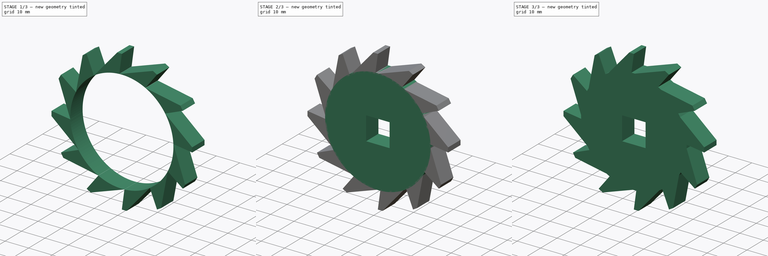
[diagram: build sequence overview — one tinted view per stage of 3, left to right]
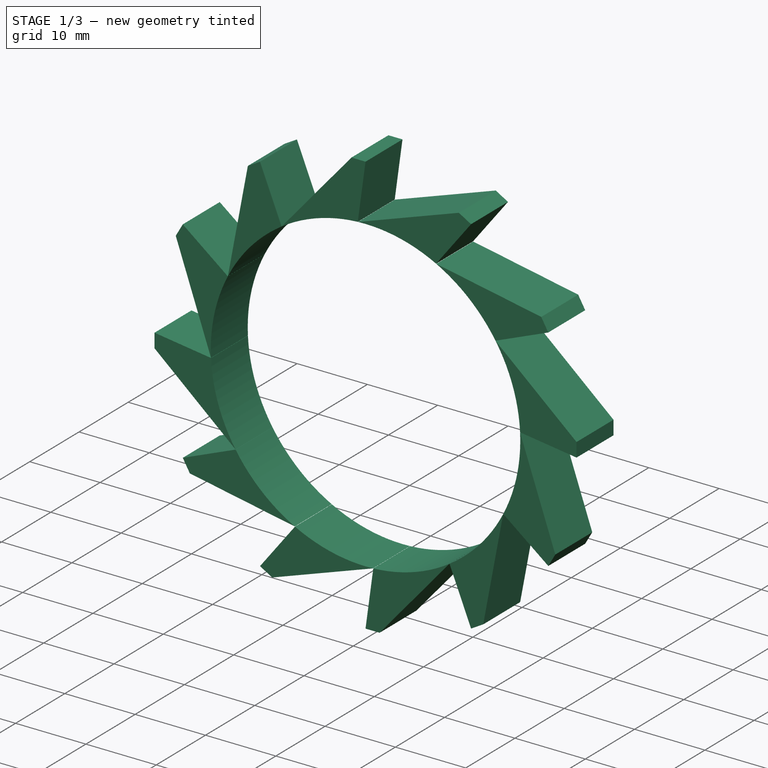
[diagram: stage 1 of 3 — iso view after this stage's code; geometry added in this stage tinted green]
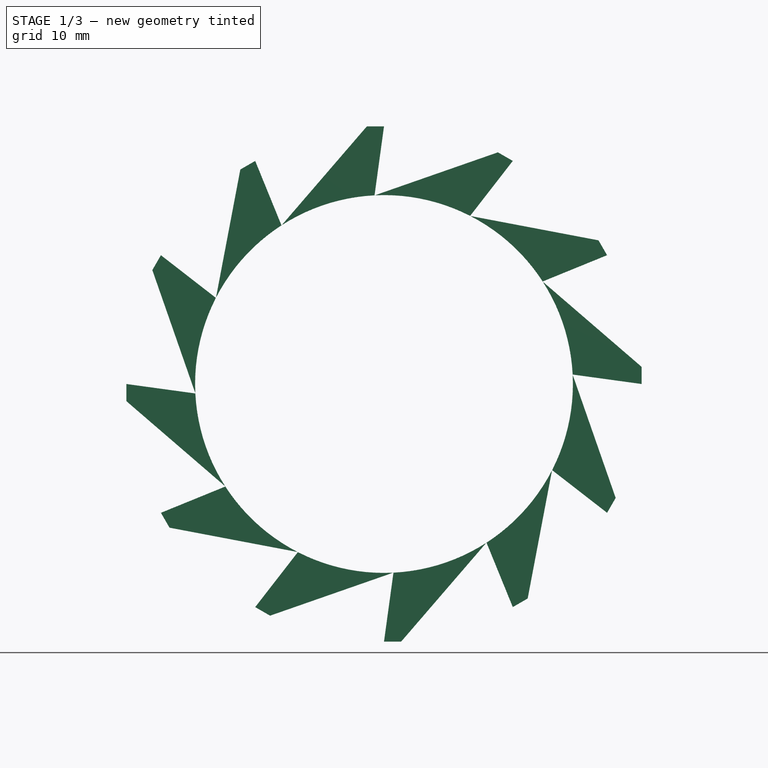
[diagram: stage 1 of 3 — front view after this stage's code; geometry added in this stage tinted green]
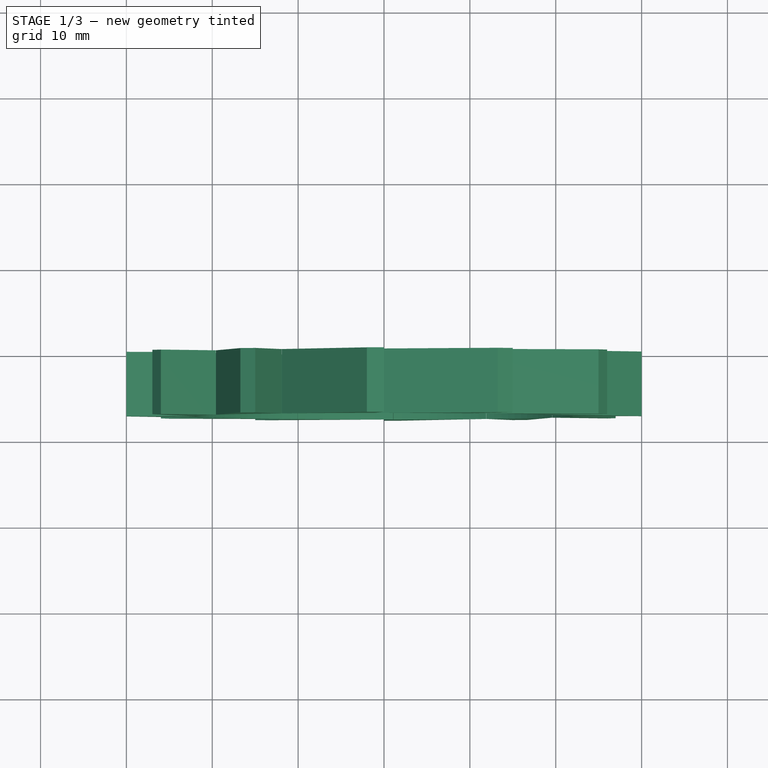
[diagram: stage 1 of 3 — top view after this stage's code; geometry added in this stage tinted green]
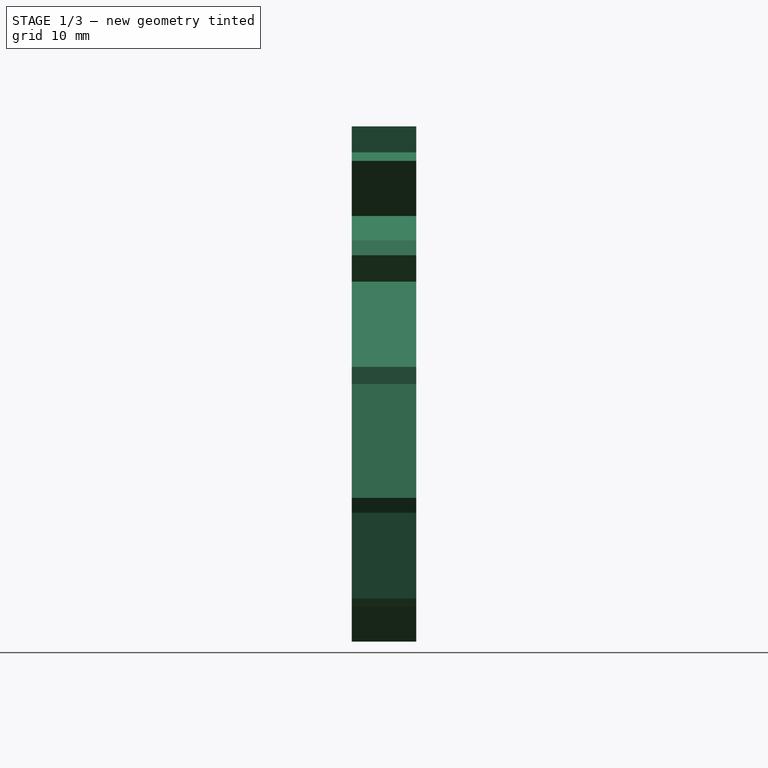
[diagram: stage 1 of 3 — right view after this stage's code; geometry added in this stage tinted green]
FCSTD DOCUMENT  (FreeCAD 0.16RUnknown)
Label: Rueda Dentada
License: All rights reserved
LicenseURL: http://en.wikipedia.org/wiki/All_rights_reserved
objects: Sketcher::SketchObject×2, PartDesign::Pad×2, Part::MultiFuse×2, Part::FeaturePython×1, Part::Feature×1
note: 10 computed .brp shape members not serialized (recipe doc carries the construction recipe); baked Part::Feature solids carry a one-line shape summary decoded from their .brp

FEATURE [Sketcher::SketchObject] Sketch001
  Placement = pos=(0,0,0) rot=(-1,0,0;4.71239rad)
  sketch-geometry (13):
    g0: LineSegment StartX=0 StartY=30 StartZ=0 EndX=-1.10213 EndY=21.9724 EndZ=0
    g1: LineSegment [constr] StartX=-1.10213 StartY=21.9724 StartZ=0 EndX=13.2405 EndY=26.9201 EndZ=0
    g2: LineSegment [constr] StartX=13.2405 StartY=26.9201 StartZ=0 EndX=14.9411 EndY=26.0147 EndZ=0
    g3: LineSegment [constr] StartX=14.9411 StartY=26.0147 StartZ=0 EndX=8.96058 EndY=20.6388 EndZ=0
    g4: LineSegment StartX=0 StartY=30 StartZ=0 EndX=-2 EndY=30 EndZ=0
    g5: LineSegment StartX=-2 StartY=30 StartZ=0 EndX=-11.9168 EndY=18.493 EndZ=0
    g6: LineSegment [constr] StartX=-11.9168 StartY=18.493 StartZ=0 EndX=-15.0018 EndY=25.9797 EndZ=0
    g7: LineSegment [constr] StartX=-15.0018 StartY=25.9797 StartZ=0 EndX=-16.6995 EndY=24.9224 EndZ=0
    g8: LineSegment [constr] StartX=-16.6995 StartY=24.9224 StartZ=0 EndX=-19.3761 EndY=11.4375 EndZ=0
    g9: LineSegment [constr] StartX=0 StartY=0 StartZ=0 EndX=17.6551 EndY=35.8957 EndZ=0
    g10: LineSegment [constr] StartX=-2.22259 StartY=33.3389 StartZ=0 EndX=0 EndY=0 EndZ=0
    g11: LineSegment [constr] StartX=0 StartY=0 StartZ=0 EndX=-19.2228 EndY=33.2894 EndZ=0
    g12: ArcOfCircle CenterX=0 CenterY=0 CenterZ=0 NormalX=0 NormalY=0 NormalZ=1 Radius=22 StartAngle=1.62091 EndAngle=2.14322
  constraints (31):
    c: Coincident(g0,g1)
    c: Coincident(g1,g2)
    c: Coincident(g2,g3)
    c: PointOnObject(g0,g-2)
    c: Coincident(g4,g0)
    c: Horizontal(g4)
    c: DistanceX(g4,g4) = 2
    c: Coincident(g5,g6)
    c: Coincident(g6,g7)
    c: Coincident(g7,g8)
    c: Distance(g7) = 2
    c: Angle(g1,g0) = 1.10218
    c: Coincident(g9,g-1)
    c: PointOnObject(g1,g9)
    c: Angle(g9,g-2) = 0.457102
    c: Angle(g5,g6) = 1.10218
    c: DistanceY(g-1,g0) = 30
    c: Coincident(g4,g5)
    c: Coincident(g10,g-1)
    c: PointOnObject(g4,g10)
    c: Coincident(g11,g-1)
    c: PointOnObject(g6,g11)
    c: Angle(g10,g11) = 0.457102
    c: Distance(g-1,g1) = 30
    c: Distance(g-1,g2) = 30
    c: Distance(g-1,g6) = 30
    c: Distance(g-1,g7) = 30
    c: Coincident(g12,g-1)
    c: Coincident(g12,g5)
    c: Coincident(g12,g0)
    c: Radius(g12) = 22
FEATURE [PartDesign::Pad] Pad001
  Length = 7.5
  Length2 = 100
  Placement = pos=(0,0,0) rot=(-1,0,0;4.71239rad)
  Sketch = -> Sketch001
  Type = 0
FEATURE [Part::FeaturePython] Array  # Draft array (typed FeaturePython)
  Angle = 360
  ArrayType = 1
  Axis = (0,1,0)
  Base = -> Pad001
  Center = (0,0,0)
  Fuse = false
  IntervalAxis = (0,0,0)
  IntervalX = (1,0,0)
  IntervalY = (0,1,0)
  IntervalZ = (0,0,0)
  NumberPolar = 12
  NumberX = 1
  NumberY = 1
  NumberZ = 1
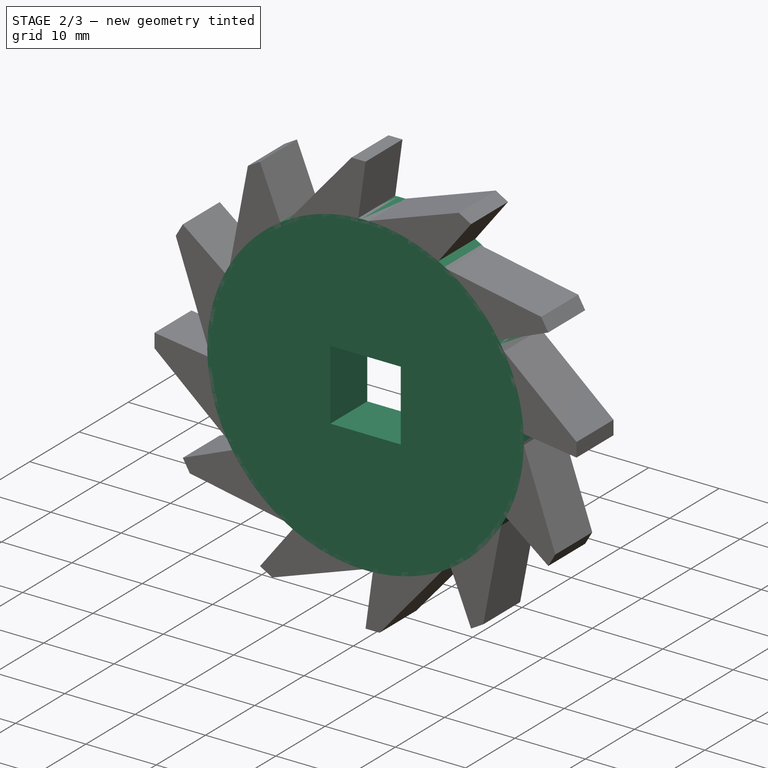
[diagram: stage 2 of 3 — iso view after this stage's code; geometry added in this stage tinted green]
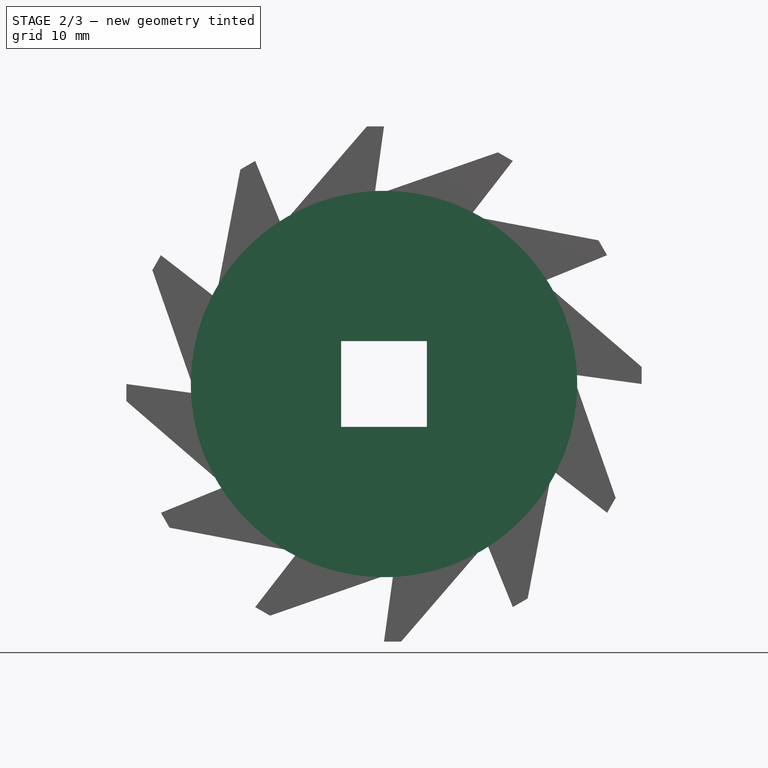
[diagram: stage 2 of 3 — front view after this stage's code; geometry added in this stage tinted green]
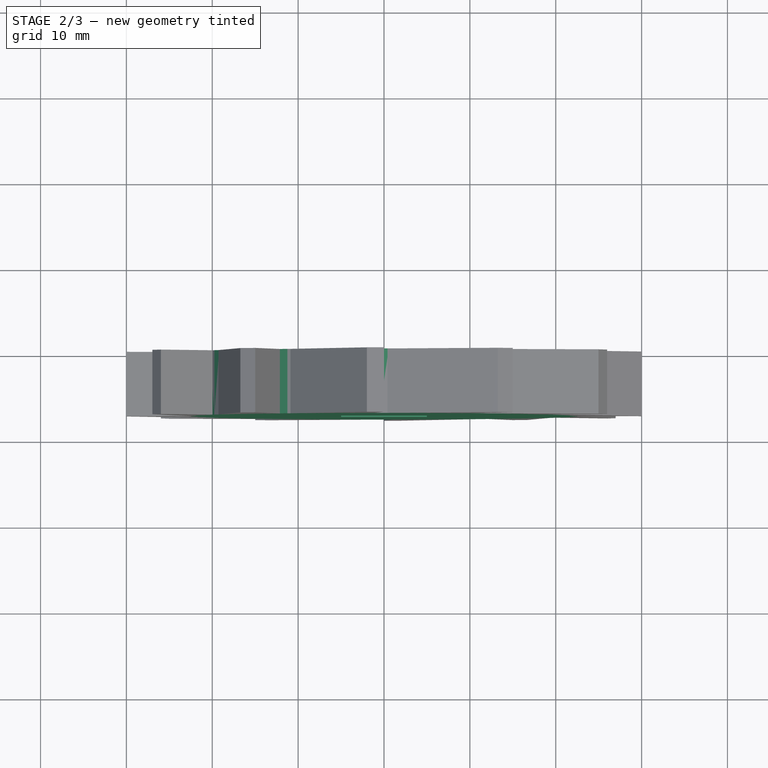
[diagram: stage 2 of 3 — top view after this stage's code; geometry added in this stage tinted green]
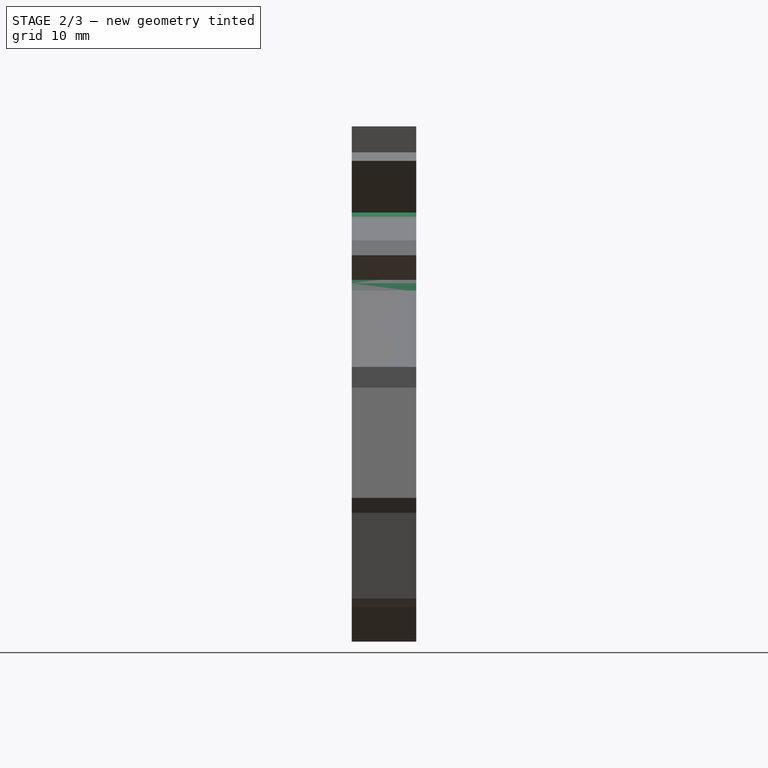
[diagram: stage 2 of 3 — right view after this stage's code; geometry added in this stage tinted green]
FEATURE [Sketcher::SketchObject] Sketch
  Placement = pos=(0,0,0) rot=(-1,0,0;4.71239rad)
  sketch-geometry (5):
    g0: Circle CenterX=0 CenterY=0 CenterZ=0 NormalX=0 NormalY=0 NormalZ=1 Radius=22.5
    g1: LineSegment StartX=-5 StartY=5 StartZ=0 EndX=5 EndY=5 EndZ=0
    g2: LineSegment StartX=5 StartY=5 StartZ=0 EndX=5 EndY=-5 EndZ=0
    g3: LineSegment StartX=5 StartY=-5 StartZ=0 EndX=-5 EndY=-5 EndZ=0
    g4: LineSegment StartX=-5 StartY=-5 StartZ=0 EndX=-5 EndY=5 EndZ=0
  constraints (14):
    c: Coincident(g0,g-1)
    c: Radius(g0) = 22.5
    c: Coincident(g1,g2)
    c: Coincident(g2,g3)
    c: Coincident(g3,g4)
    c: Coincident(g4,g1)
    c: Horizontal(g1)
    c: Horizontal(g3)
    c: Vertical(g2)
    c: Vertical(g4)
    c: Symmetric(g2,g1,g-1)
    c: Symmetric(g2,g3,g-2)
    c: DistanceX(g1,g1) = 10
    c: Equal(g1,g4)
FEATURE [PartDesign::Pad] Pad
  Length = 7.5
  Length2 = 100
  Placement = pos=(0,0,0) rot=(-1,0,0;4.71239rad)
  Sketch = -> Sketch
  Type = 0
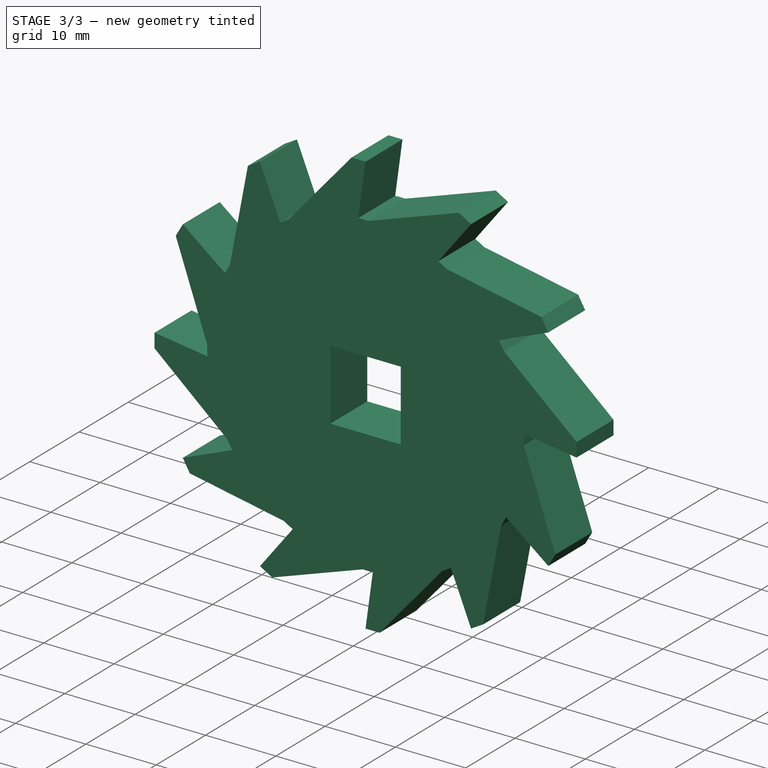
[diagram: stage 3 of 3 — iso view after this stage's code; geometry added in this stage tinted green]
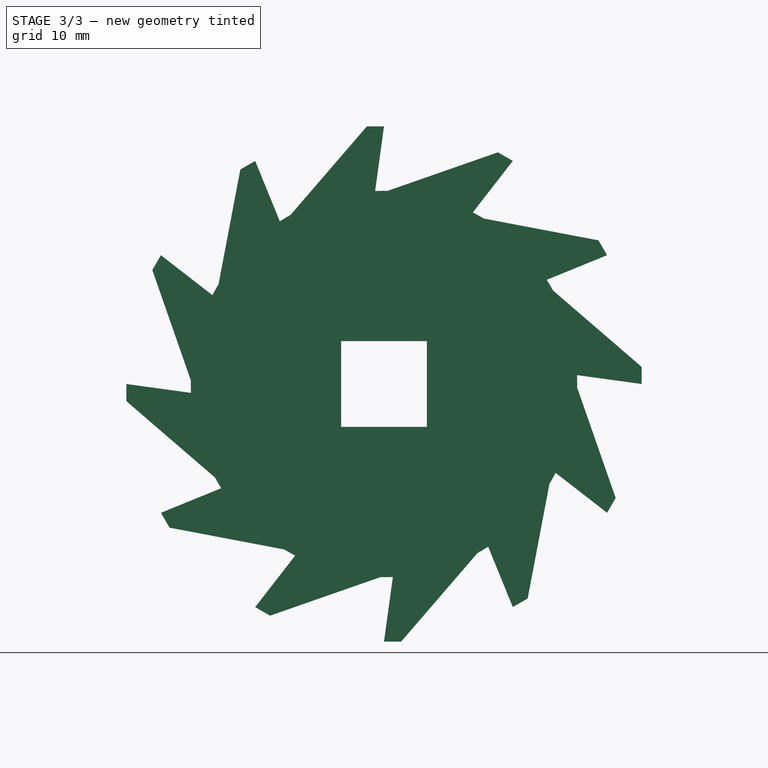
[diagram: stage 3 of 3 — front view after this stage's code; geometry added in this stage tinted green]
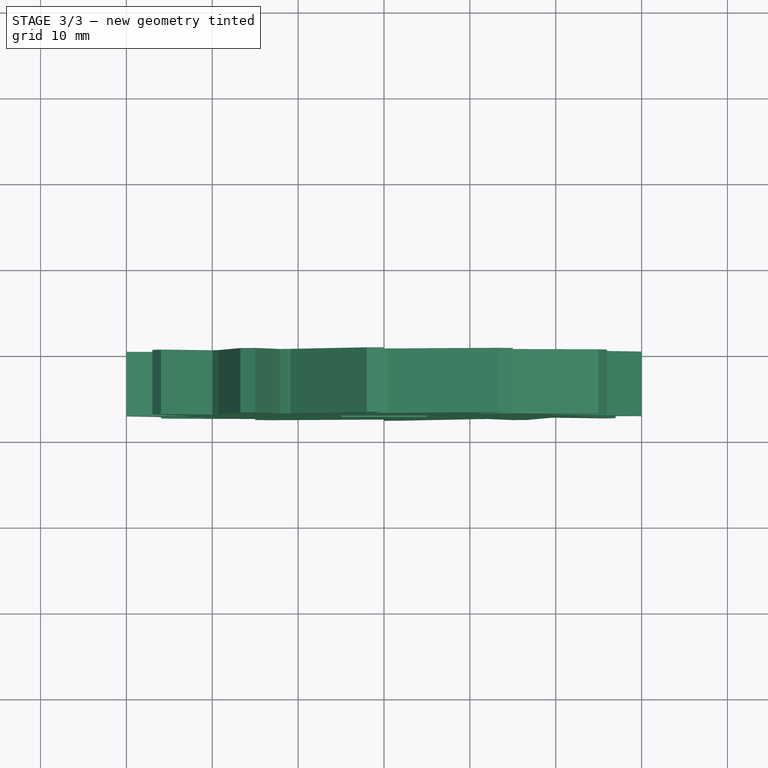
[diagram: stage 3 of 3 — top view after this stage's code; geometry added in this stage tinted green]
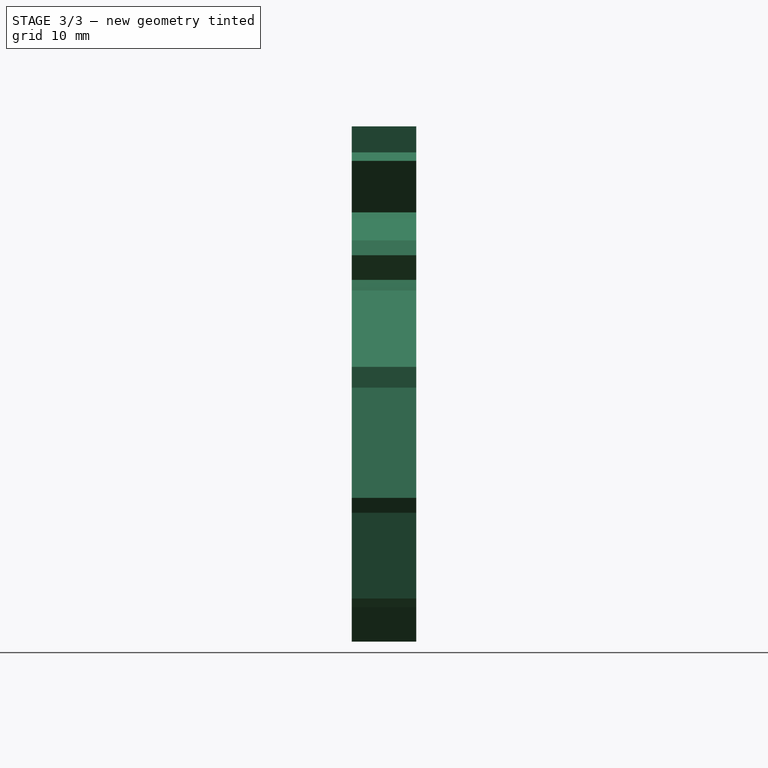
[diagram: stage 3 of 3 — right view after this stage's code; geometry added in this stage tinted green]
FEATURE [Part::MultiFuse] Fusion
  Shapes = -> [Pad,Pad001]
FEATURE [Part::MultiFuse] Fusion001
  Shapes = -> [Array,Fusion]
FEATURE [Part::Feature] Fusion001001  label="Fusion002"
  shape: bbox 60 x 7.5 x 60 mm, 54 faces (baked)
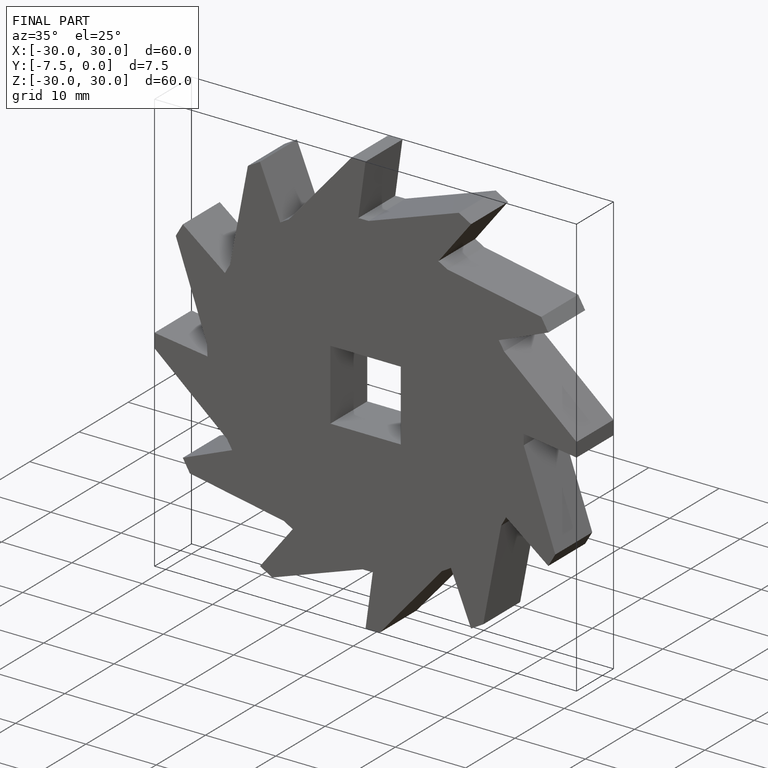
[diagram: finished part — iso view with bounding-box wireframe]
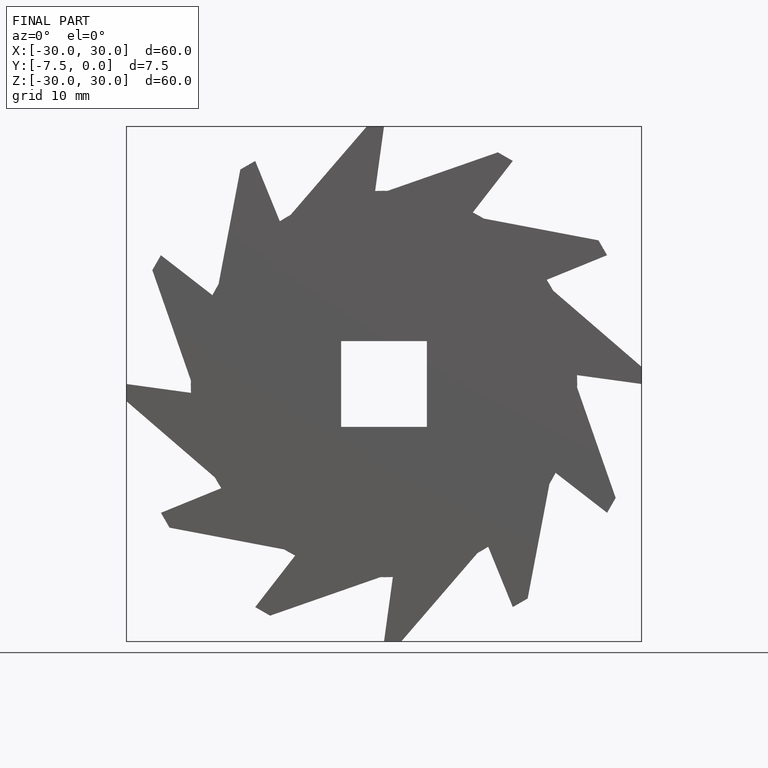
[diagram: finished part — front view with bounding-box wireframe]
